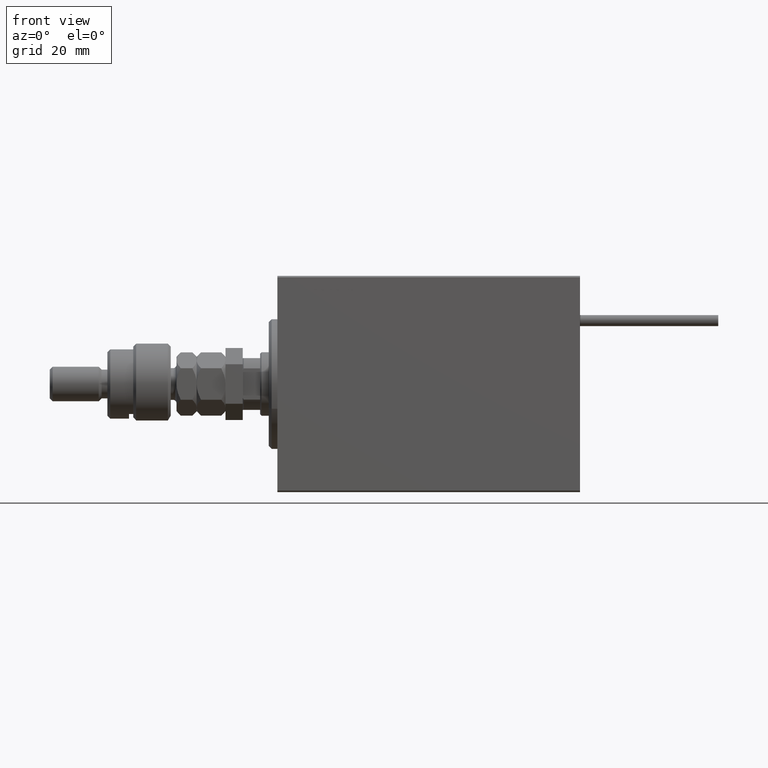
[diagram: clean part render]
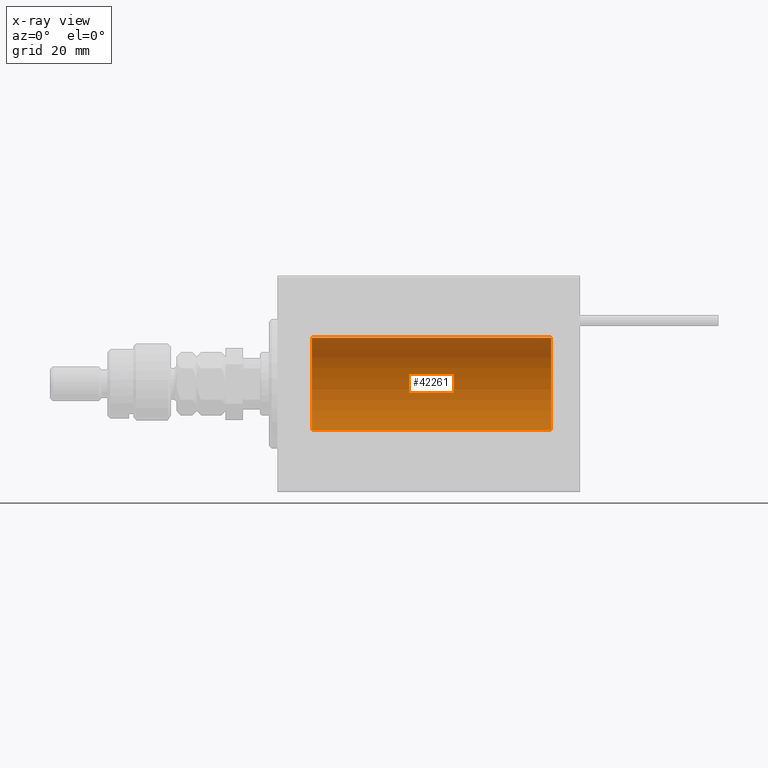
[diagram: x-ray — body ghosted, one internal face saturated and labeled with its STEP entity id]
A machine part, front view, then the same camera in x-ray: the body is ghosted and one INTERNAL B-rep face — a face not visible from any outside direction — is saturated and labeled: STEP entity #42261.
In plain terms, the highlighted cylindrical surface (partial cylindrical patch) has radius 16 mm, axis along (-1, -0, -0).
Its self-contained STEP definition (entity closure, byte-faithful):
#2356 = LINE ( 'NONE', #42328, #12194 ) ;
#6358 = DIRECTION ( 'NONE',  ( -1.000000000000000000, -0.000000000000000000, -0.000000000000000000 ) ) ;
#7275 = VERTEX_POINT ( 'NONE', #22093 ) ;
#9478 = CYLINDRICAL_SURFACE ( 'NONE', #44865, 16.00000000000000000 ) ;
#10849 = VECTOR ( 'NONE', #26724, 1000.000000000000000 ) ;
#10946 = EDGE_CURVE ( 'NONE', #7275, #24432, #50488, .T. ) ;
#11475 = DIRECTION ( 'NONE',  ( 0.000000000000000000, 0.000000000000000000, 1.000000000000000000 ) ) ;
#11785 = ORIENTED_EDGE ( 'NONE', *, *, #33317, .T. ) ;
#12194 = VECTOR ( 'NONE', #6358, 1000.000000000000000 ) ;
#13191 = CARTESIAN_POINT ( 'NONE',  ( 11.99999999999999645, 0.000000000000000000, 0.000000000000000000 ) ) ;
#14120 = AXIS2_PLACEMENT_3D ( 'NONE', #13191, #29430, #42476 ) ;
#17722 = DIRECTION ( 'NONE',  ( -1.000000000000000000, -0.000000000000000000, -0.000000000000000000 ) ) ;
#22093 = CARTESIAN_POINT ( 'NONE',  ( 95.00000000000000000, 1.959434878635765131E-15, -16.00000000000000000 ) ) ;
#22192 = CARTESIAN_POINT ( 'NONE',  ( 11.99999999999999645, 1.959434878635765131E-15, -16.00000000000000000 ) ) ;
#23474 = DIRECTION ( 'NONE',  ( -1.000000000000000000, 0.000000000000000000, 0.000000000000000000 ) ) ;
#23527 = CIRCLE ( 'NONE', #14120, 16.00000000000000000 ) ;
#24432 = VERTEX_POINT ( 'NONE', #22192 ) ;
#24791 = EDGE_LOOP ( 'NONE', ( #29847, #38258, #11785, #51134 ) ) ;
#24930 = CARTESIAN_POINT ( 'NONE',  ( 11.99999999999999645, 0.000000000000000000, 16.00000000000000000 ) ) ;
#25677 = CARTESIAN_POINT ( 'NONE',  ( 95.00000000000000000, 1.959434878635765131E-15, -16.00000000000000000 ) ) ;
#25974 = FACE_OUTER_BOUND ( 'NONE', #24791, .T. ) ;
#26724 = DIRECTION ( 'NONE',  ( -1.000000000000000000, -0.000000000000000000, -0.000000000000000000 ) ) ;
#29430 = DIRECTION ( 'NONE',  ( -1.000000000000000000, 0.000000000000000000, 0.000000000000000000 ) ) ;
#29847 = ORIENTED_EDGE ( 'NONE', *, *, #10946, .F. ) ;
#30233 = AXIS2_PLACEMENT_3D ( 'NONE', #35977, #23474, #11475 ) ;
#33317 = EDGE_CURVE ( 'NONE', #35947, #41379, #2356, .T. ) ;
#35332 = CIRCLE ( 'NONE', #30233, 16.00000000000000000 ) ;
#35947 = VERTEX_POINT ( 'NONE', #48703 ) ;
#35977 = CARTESIAN_POINT ( 'NONE',  ( 95.00000000000000000, 0.000000000000000000, 0.000000000000000000 ) ) ;
#38258 = ORIENTED_EDGE ( 'NONE', *, *, #38351, .F. ) ;
#38351 = EDGE_CURVE ( 'NONE', #35947, #7275, #35332, .T. ) ;
#40536 = EDGE_CURVE ( 'NONE', #41379, #24432, #23527, .T. ) ;
#41379 = VERTEX_POINT ( 'NONE', #24930 ) ;
#41711 = DIRECTION ( 'NONE',  ( 0.000000000000000000, 0.000000000000000000, 1.000000000000000000 ) ) ;
#42261 = ADVANCED_FACE ( 'NONE', ( #25974 ), #9478, .F. ) ;
#42328 = CARTESIAN_POINT ( 'NONE',  ( 95.00000000000000000, 0.000000000000000000, 16.00000000000000000 ) ) ;
#42476 = DIRECTION ( 'NONE',  ( 0.000000000000000000, 0.000000000000000000, 1.000000000000000000 ) ) ;
#44865 = AXIS2_PLACEMENT_3D ( 'NONE', #50785, #17722, #41711 ) ;
#48703 = CARTESIAN_POINT ( 'NONE',  ( 95.00000000000000000, 0.000000000000000000, 16.00000000000000000 ) ) ;
#50488 = LINE ( 'NONE', #25677, #10849 ) ;
#50785 = CARTESIAN_POINT ( 'NONE',  ( 95.00000000000000000, 0.000000000000000000, 0.000000000000000000 ) ) ;
#51134 = ORIENTED_EDGE ( 'NONE', *, *, #40536, .T. ) ;